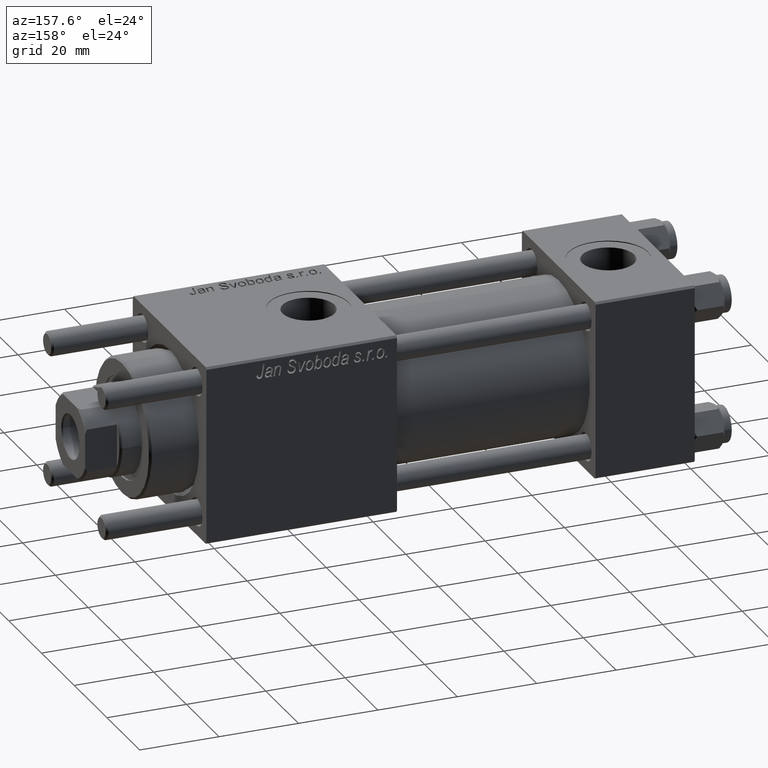
[diagram: clean part render]
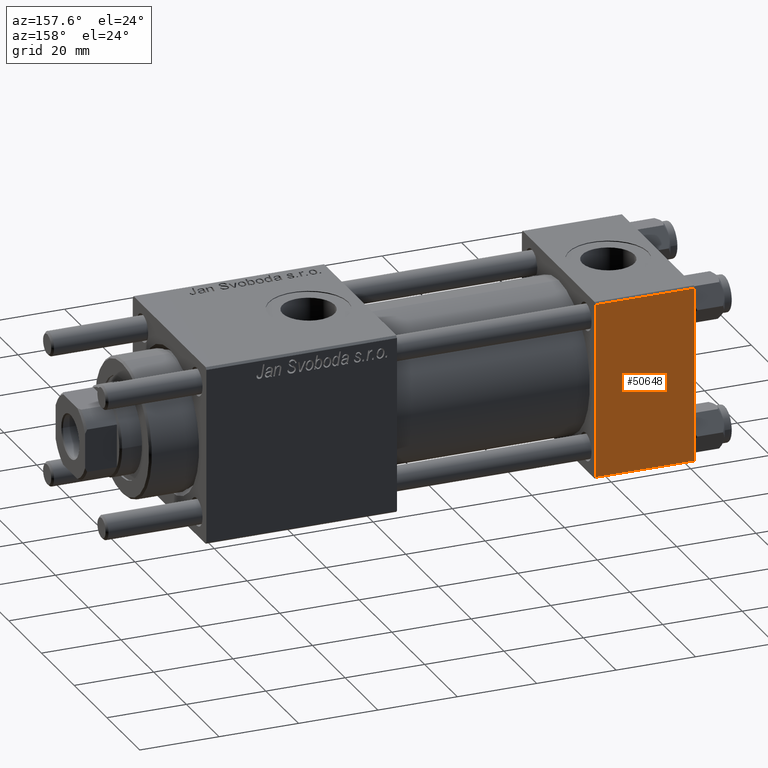
[diagram: same view with one face highlighted and labeled with its STEP entity id]
A machine part, auxiliary view. The second image highlights one B-rep face of the part: STEP entity #50648.
In plain terms, the highlighted planar face has unit normal (0, 1, 0).
Its self-contained STEP definition (entity closure, byte-faithful):
#3282 = LINE ( 'NONE', #47273, #14180 ) ;
#8180 = VERTEX_POINT ( 'NONE', #19916 ) ;
#8832 = EDGE_CURVE ( 'NONE', #16726, #13851, #50432, .T. ) ;
#10147 = CARTESIAN_POINT ( 'NONE',  ( 25.00000000000000000, 22.50000000000000000, 22.50000000000000355 ) ) ;
#11680 = EDGE_LOOP ( 'NONE', ( #47199, #46328, #27063, #41130 ) ) ;
#13851 = VERTEX_POINT ( 'NONE', #16600 ) ;
#14180 = VECTOR ( 'NONE', #34906, 1000.000000000000000 ) ;
#15345 = CARTESIAN_POINT ( 'NONE',  ( 25.00000000000000000, 22.50000000000000000, 21.99999999999999645 ) ) ;
#16600 = CARTESIAN_POINT ( 'NONE',  ( 25.00000000000000000, 22.50000000000000000, 21.99999999999999645 ) ) ;
#16726 = VERTEX_POINT ( 'NONE', #26515 ) ;
#17337 = CARTESIAN_POINT ( 'NONE',  ( 25.00000000000000000, 22.50000000000000000, -21.99999999999998224 ) ) ;
#17437 = VECTOR ( 'NONE', #35174, 1000.000000000000000 ) ;
#19071 = PLANE ( 'NONE',  #45481 ) ;
#19916 = CARTESIAN_POINT ( 'NONE',  ( 0.000000000000000000, 22.50000000000000000, -21.99999999999996803 ) ) ;
#21727 = DIRECTION ( 'NONE',  ( 0.000000000000000000, 0.000000000000000000, -1.000000000000000000 ) ) ;
#22528 = LINE ( 'NONE', #17337, #17437 ) ;
#22774 = EDGE_CURVE ( 'NONE', #43710, #8180, #22528, .T. ) ;
#26515 = CARTESIAN_POINT ( 'NONE',  ( 0.000000000000000000, 22.50000000000000000, 21.99999999999999645 ) ) ;
#27063 = ORIENTED_EDGE ( 'NONE', *, *, #46988, .F. ) ;
#29295 = CARTESIAN_POINT ( 'NONE',  ( 25.00000000000000000, 22.50000000000000000, -21.99999999999996803 ) ) ;
#30047 = LINE ( 'NONE', #34942, #37099 ) ;
#32848 = FACE_OUTER_BOUND ( 'NONE', #11680, .T. ) ;
#34906 = DIRECTION ( 'NONE',  ( 0.000000000000000000, 0.000000000000000000, -1.000000000000000000 ) ) ;
#34942 = CARTESIAN_POINT ( 'NONE',  ( 25.00000000000000000, 22.50000000000000000, 22.50000000000000355 ) ) ;
#35174 = DIRECTION ( 'NONE',  ( -1.000000000000000000, 0.000000000000000000, 0.000000000000000000 ) ) ;
#36892 = DIRECTION ( 'NONE',  ( 0.000000000000000000, -0.000000000000000000, 1.000000000000000000 ) ) ;
#37099 = VECTOR ( 'NONE', #21727, 1000.000000000000000 ) ;
#37175 = DIRECTION ( 'NONE',  ( -0.000000000000000000, 1.000000000000000000, 0.000000000000000000 ) ) ;
#41130 = ORIENTED_EDGE ( 'NONE', *, *, #8832, .T. ) ;
#41516 = DIRECTION ( 'NONE',  ( 1.000000000000000000, 0.000000000000000000, 0.000000000000000000 ) ) ;
#41942 = EDGE_CURVE ( 'NONE', #13851, #43710, #30047, .T. ) ;
#43710 = VERTEX_POINT ( 'NONE', #29295 ) ;
#45481 = AXIS2_PLACEMENT_3D ( 'NONE', #10147, #37175, #36892 ) ;
#46328 = ORIENTED_EDGE ( 'NONE', *, *, #22774, .T. ) ;
#46988 = EDGE_CURVE ( 'NONE', #16726, #8180, #3282, .T. ) ;
#47199 = ORIENTED_EDGE ( 'NONE', *, *, #41942, .T. ) ;
#47273 = CARTESIAN_POINT ( 'NONE',  ( 0.000000000000000000, 22.50000000000000000, 22.50000000000000355 ) ) ;
#50432 = LINE ( 'NONE', #15345, #52260 ) ;
#50648 = ADVANCED_FACE ( 'NONE', ( #32848 ), #19071, .T. ) ;
#52260 = VECTOR ( 'NONE', #41516, 1000.000000000000000 ) ;